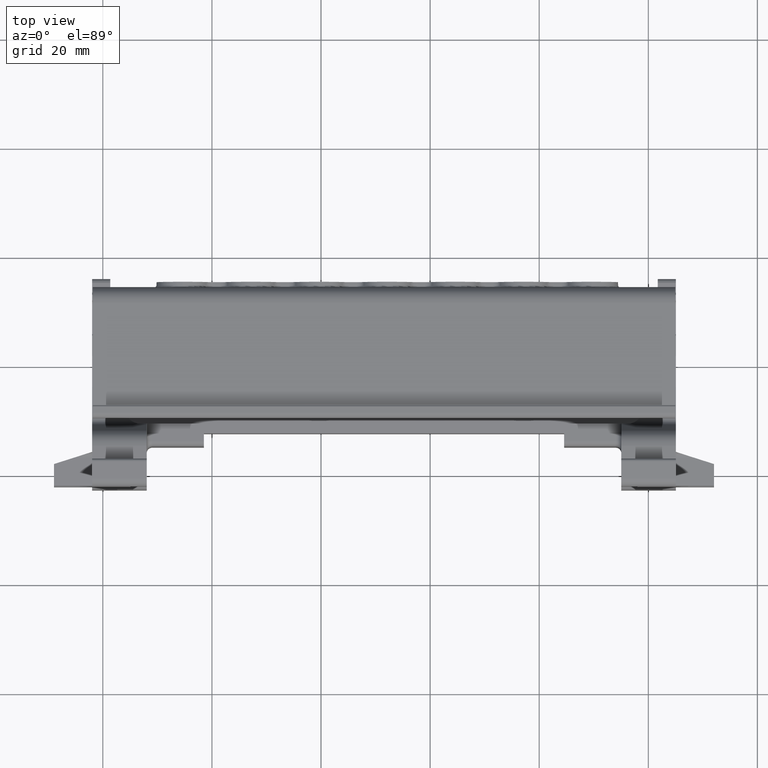
[diagram: clean part render]
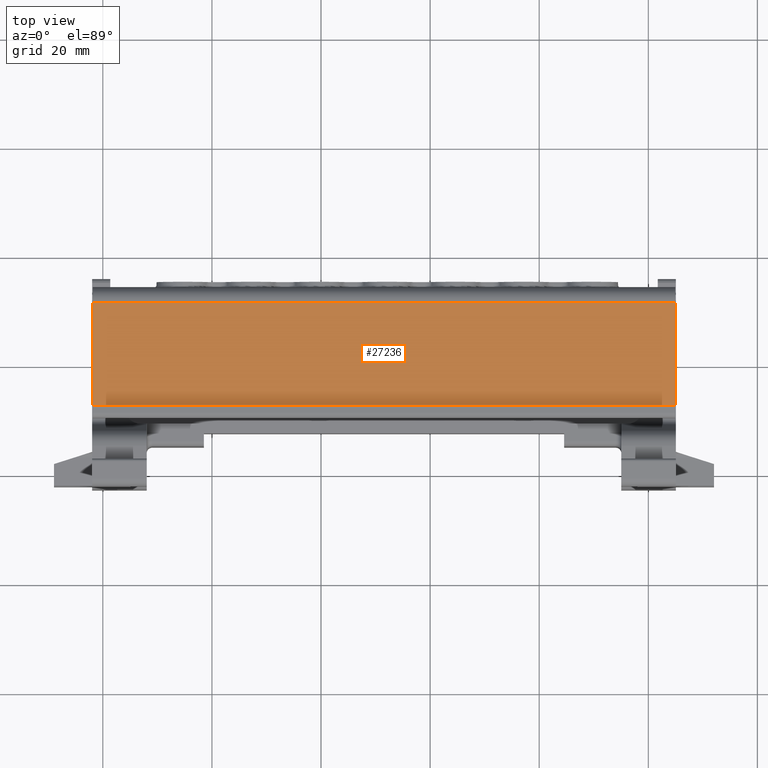
[diagram: same view with one face highlighted and labeled with its STEP entity id]
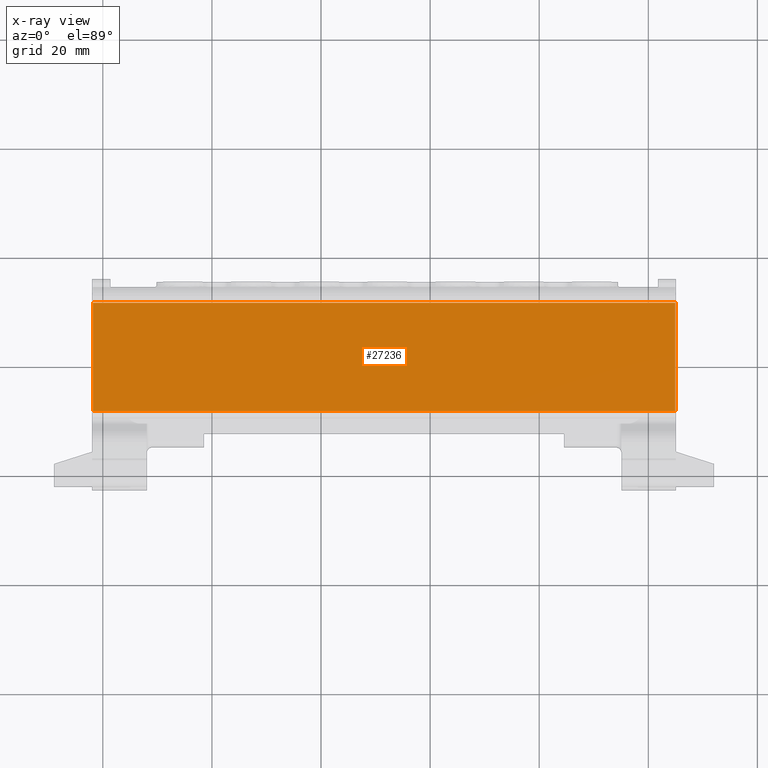
[diagram: x-ray of the same camera — body ghosted, the highlighted face saturated]
A machine part, top view. The second image highlights one B-rep face of the part: STEP entity #27236.
The next image is the same camera in x-ray: the body ghosted, the highlighted face saturated — about 0% of this face is hidden behind the body in this view.
In plain terms, the highlighted planar face has unit normal (0, 0.0175, 0.9998).
Its self-contained STEP definition (entity closure, byte-faithful):
#893 = ORIENTED_EDGE ( 'NONE', *, *, #18399, .F. ) ;
#908 = ORIENTED_EDGE ( 'NONE', *, *, #18591, .T. ) ;
#934 = ORIENTED_EDGE ( 'NONE', *, *, #18384, .T. ) ;
#961 = ORIENTED_EDGE ( 'NONE', *, *, #18584, .F. ) ;
#2044 = FACE_OUTER_BOUND ( 'NONE', #5206, .T. ) ;
#2092 = DIRECTION ( 'NONE',  ( -6.946894149668181800E-015, -0.9998477058144494800, 0.01745179582685387600 ) ) ;
#2121 = CARTESIAN_POINT ( 'NONE',  ( 44.14730230417465200, 62.90220683324421500, 47.21976331119906700 ) ) ;
#2123 = PLANE ( 'NONE',  #11031 ) ;
#2130 = DIRECTION ( 'NONE',  ( 3.990437234262073400E-015, 0.01745179582685387600, 0.9998477058144494800 ) ) ;
#5206 = EDGE_LOOP ( 'NONE', ( #893, #961, #934, #908 ) ) ;
#9870 = DIRECTION ( 'NONE',  ( -1.000000000000000000, 7.897574933817846300E-015, 3.853197191115062900E-015 ) ) ;
#9885 = LINE ( 'NONE', #9902, #16470 ) ;
#9896 = LINE ( 'NONE', #9957, #16477 ) ;
#9902 = CARTESIAN_POINT ( 'NONE',  ( 44.14730230417457300, 51.37580093707681800, 47.42095043314524400 ) ) ;
#9939 = DIRECTION ( 'NONE',  ( -1.000000000000000000, 7.897574933817846300E-015, 3.853197191115062900E-015 ) ) ;
#9957 = CARTESIAN_POINT ( 'NONE',  ( 44.14730230417468700, 71.26518187041283200, 47.07379214778583100 ) ) ;
#11031 = AXIS2_PLACEMENT_3D ( 'NONE', #2121, #2130, #2092 ) ;
#13591 = VERTEX_POINT ( 'NONE', #21428 ) ;
#13614 = VERTEX_POINT ( 'NONE', #21437 ) ;
#13671 = VERTEX_POINT ( 'NONE', #21514 ) ;
#13689 = VERTEX_POINT ( 'NONE', #21492 ) ;
#16284 = VECTOR ( 'NONE', #17400, 999.9999999999998900 ) ;
#16302 = VECTOR ( 'NONE', #17450, 999.9999999999998900 ) ;
#16470 = VECTOR ( 'NONE', #9870, 1000.000000000000000 ) ;
#16477 = VECTOR ( 'NONE', #9939, 1000.000000000000000 ) ;
#17377 = LINE ( 'NONE', #17406, #16284 ) ;
#17400 = DIRECTION ( 'NONE',  ( 7.863057209116748100E-015, 0.9998477058144494800, -0.01745179582685387600 ) ) ;
#17406 = CARTESIAN_POINT ( 'NONE',  ( 44.94730230417462700, 62.90220683324421500, 47.21976331119906700 ) ) ;
#17411 = LINE ( 'NONE', #17446, #16302 ) ;
#17446 = CARTESIAN_POINT ( 'NONE',  ( -61.85269769582532000, 62.90220683324506000, 47.21976331119947200 ) ) ;
#17450 = DIRECTION ( 'NONE',  ( 7.863057209116748100E-015, 0.9998477058144494800, -0.01745179582685387600 ) ) ;
#18384 = EDGE_CURVE ( 'NONE', #13671, #13614, #17377, .T. ) ;
#18399 = EDGE_CURVE ( 'NONE', #13591, #13689, #17411, .T. ) ;
#18584 = EDGE_CURVE ( 'NONE', #13671, #13591, #9885, .T. ) ;
#18591 = EDGE_CURVE ( 'NONE', #13614, #13689, #9896, .T. ) ;
#21428 = CARTESIAN_POINT ( 'NONE',  ( -61.85269769582541200, 51.37580093707765600, 47.42095043314565600 ) ) ;
#21437 = CARTESIAN_POINT ( 'NONE',  ( 44.94730230417468400, 71.26518187041283200, 47.07379214778583100 ) ) ;
#21492 = CARTESIAN_POINT ( 'NONE',  ( -61.85269769582525600, 71.26518187041367000, 47.07379214778623600 ) ) ;
#21514 = CARTESIAN_POINT ( 'NONE',  ( 44.94730230417453500, 51.37580093707681100, 47.42095043314524400 ) ) ;
#27236 = ADVANCED_FACE ( 'NONE', ( #2044 ), #2123, .T. ) ;